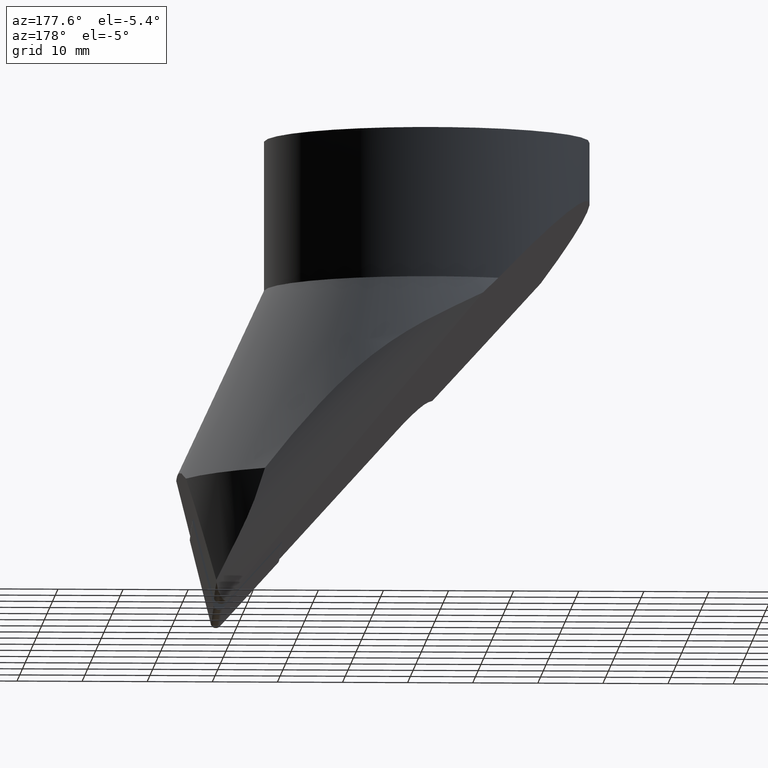
[diagram: clean part render]
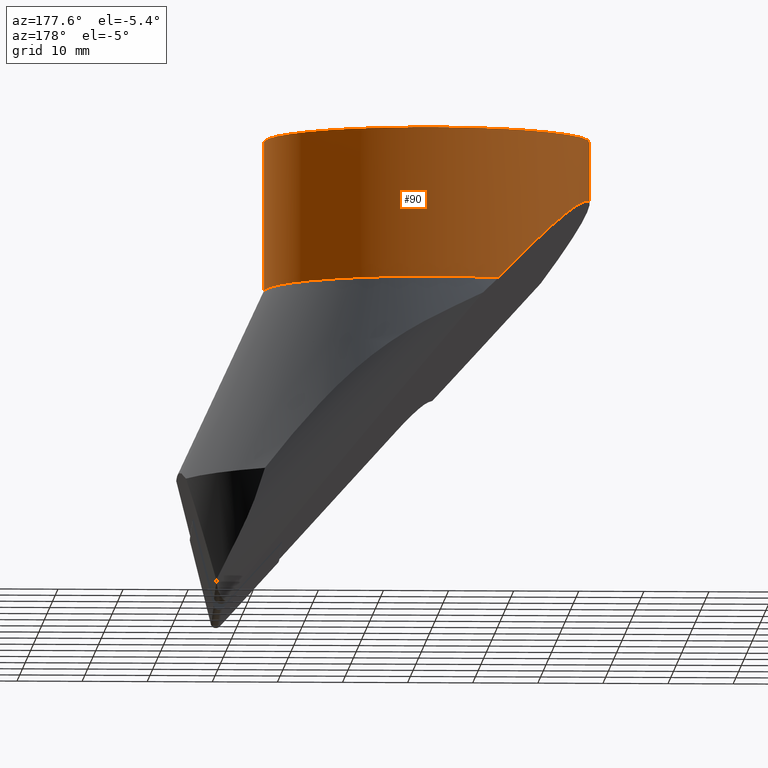
[diagram: same view with one face highlighted and labeled with its STEP entity id]
A machine part, auxiliary view. The second image highlights one B-rep face of the part: STEP entity #90.
In plain terms, the highlighted cylindrical surface (partial cylindrical patch) has radius 25 mm, axis along (-0, -0, 1).
Its self-contained STEP definition (entity closure, byte-faithful):
#90=ADVANCED_FACE('',(#136),#137,.T.);
#136=FACE_OUTER_BOUND('',#196,.T.);
#137=CYLINDRICAL_SURFACE('',#197,25.0);
#196=EDGE_LOOP('',(#349,#350,#351,#352,#353));
#197=AXIS2_PLACEMENT_3D('',#354,#355,#356);
#349=ORIENTED_EDGE('',*,*,#529,.F.);
#350=ORIENTED_EDGE('',*,*,#530,.F.);
#351=ORIENTED_EDGE('',*,*,#531,.F.);
#352=ORIENTED_EDGE('',*,*,#532,.F.);
#353=ORIENTED_EDGE('',*,*,#533,.T.);
#354=CARTESIAN_POINT('',(-1.11022302462516E-015,1.33226762955019E-014,-18.4000000000001));
#355=DIRECTION('',(-0.0,-0.0,1.0));
#356=DIRECTION('',(4.44089209850063E-016,-1.0,0.0));
#529=EDGE_CURVE('',#637,#646,#647,.T.);
#530=EDGE_CURVE('',#648,#637,#649,.T.);
#531=EDGE_CURVE('',#650,#648,#651,.T.);
#532=EDGE_CURVE('',#652,#650,#653,.T.);
#533=EDGE_CURVE('',#652,#646,#654,.T.);
#637=VERTEX_POINT('',#848);
#646=VERTEX_POINT('',#876);
#647=LINE('',#877,#878);
#648=VERTEX_POINT('',#879);
#649=CIRCLE('',#880,25.0);
#650=VERTEX_POINT('',#881);
#651=ELLIPSE('',#882,38.1214250995746,25.0);
#652=VERTEX_POINT('',#883);
#653=LINE('',#884,#885);
#654=CIRCLE('',#886,25.0);
#848=CARTESIAN_POINT('',(25.0000000000001,5.370216E-015,-23.0));
#876=CARTESIAN_POINT('',(25.0,5.370216E-015,0.0));
#877=CARTESIAN_POINT('',(25.0000000000001,5.370216E-015,-23.0));
#878=VECTOR('',#1104,23.0);
#879=CARTESIAN_POINT('',(-10.0704584855626,22.8819987302368,-23.0000000000001));
#880=AXIS2_PLACEMENT_3D('',#1105,#1106,#1107);
#881=CARTESIAN_POINT('',(-25.0,-4.557372E-016,-9.6233134324562));
#882=AXIS2_PLACEMENT_3D('',#1108,#1109,#1110);
#883=CARTESIAN_POINT('',(-25.0,-1.406057E-014,-1.136868E-013));
#884=CARTESIAN_POINT('',(-25.0,-1.406057E-014,-1.136868E-013));
#885=VECTOR('',#1111,9.62331343245609);
#886=AXIS2_PLACEMENT_3D('',#1112,#1113,#1114);
#1104=DIRECTION('',(0.0,0.0,1.0));
#1105=CARTESIAN_POINT('',(9.237056E-014,-1.995618E-015,-23.0));
#1106=DIRECTION('',(0.0,0.0,-1.0));
#1107=DIRECTION('',(1.0,0.0,0.0));
#1108=CARTESIAN_POINT('',(1.705303E-013,-7.657059E-015,-38.1257430574889));
#1109=DIRECTION('',(-0.747674819359016,0.104449876194447,-0.65579919781853));
#1110=DIRECTION('',(0.649492084443676,-0.090733787005926,-0.754935369512234));
#1111=DIRECTION('',(0.0,0.0,-1.0));
#1112=CARTESIAN_POINT('',(-2.842171E-014,6.613093E-015,0.0));
#1113=DIRECTION('',(0.0,0.0,-1.0));
#1114=DIRECTION('',(1.0,0.0,0.0));